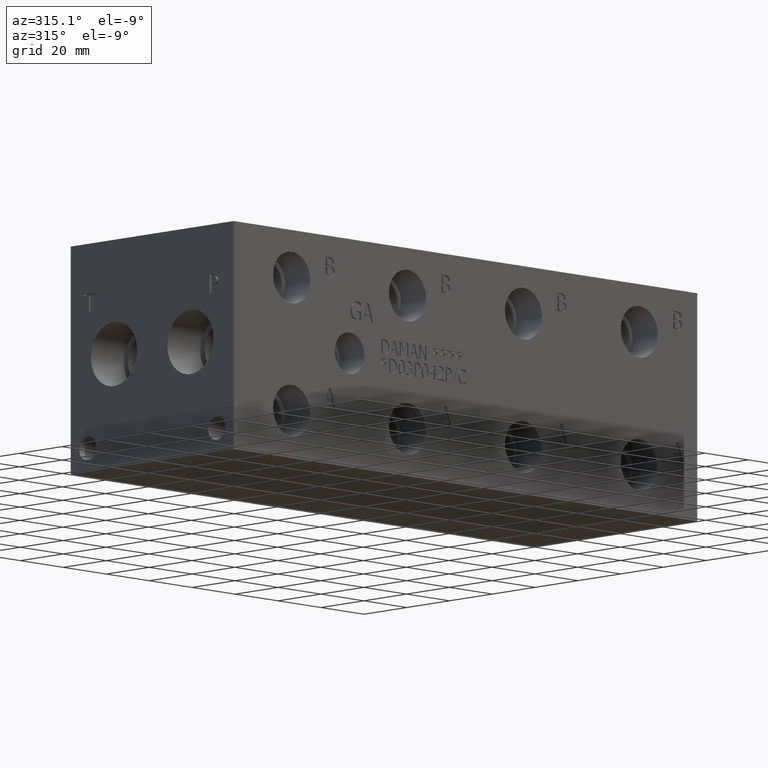
[diagram: clean part render]
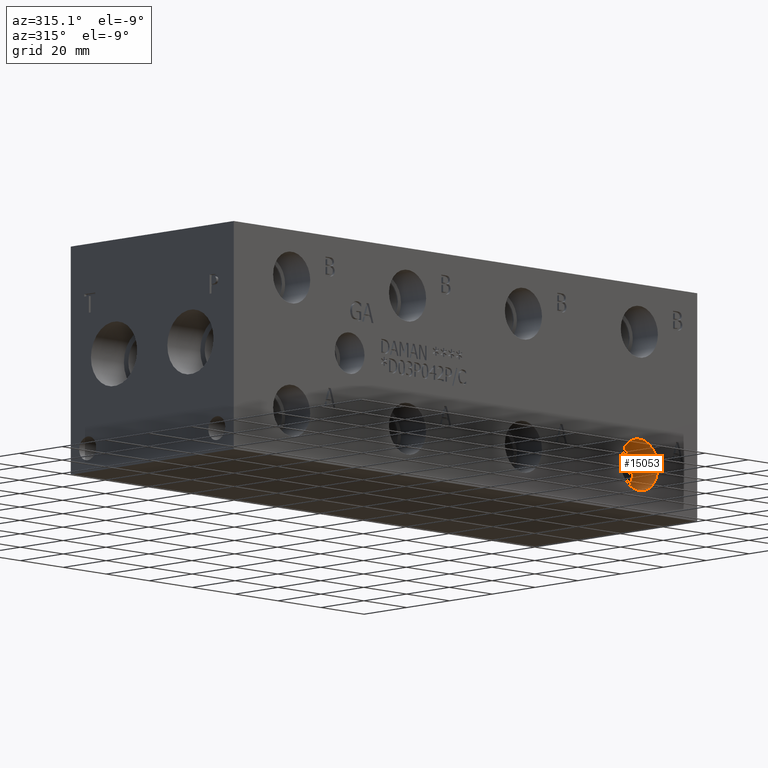
[diagram: same view with one face highlighted and labeled with its STEP entity id]
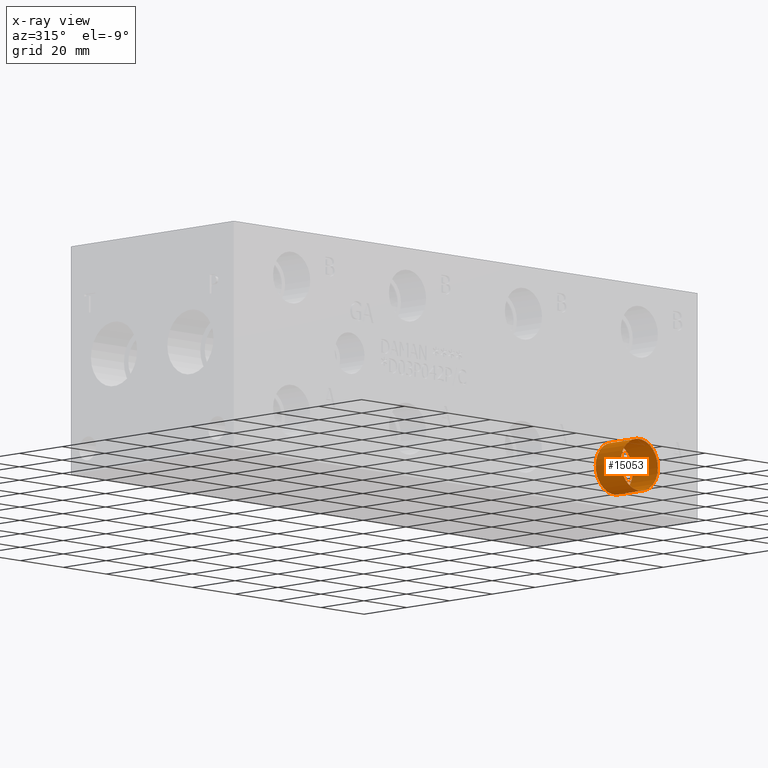
[diagram: x-ray of the same camera — body ghosted, the highlighted face saturated]
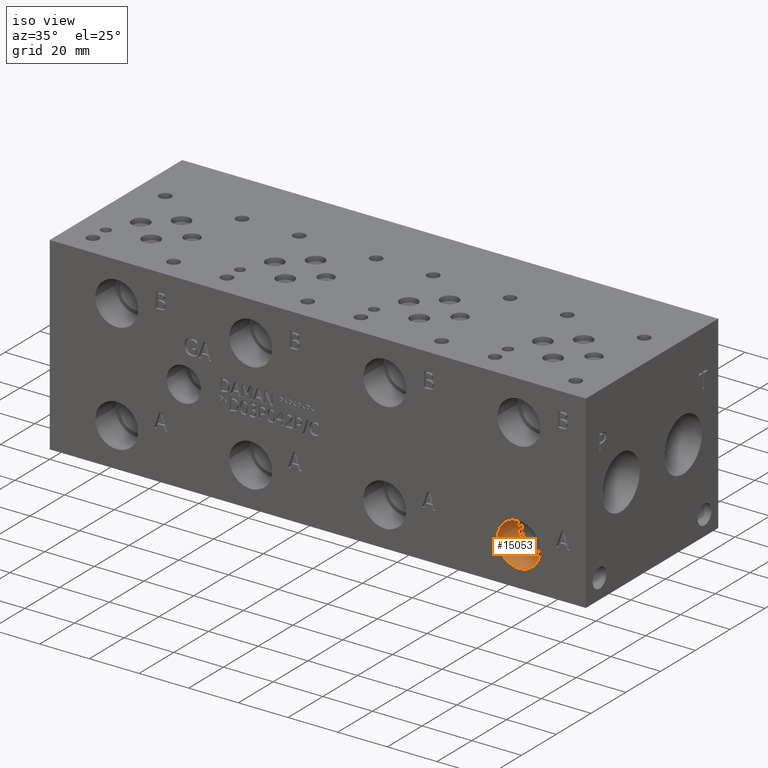
[diagram: same view with one face highlighted and labeled with its STEP entity id]
A machine part, auxiliary view. The second image highlights one B-rep face of the part: STEP entity #15053.
The next image is the same camera in x-ray: the body ghosted, the highlighted face saturated — about 0% of this face is hidden behind the body in this view.
A second angle (iso view) of the same face is appended — the face is thin or edge-on in the first view.
In plain terms, the highlighted cylindrical surface (bore or boss wall) has radius 8.6487 mm, axis along (0, -1, 0).
Its self-contained STEP definition (entity closure, byte-faithful):
#82=CYLINDRICAL_SURFACE('',#15928,8.6487);
#188=CIRCLE('',#15232,8.6487);
#189=CIRCLE('',#15233,8.6487);
#440=CIRCLE('',#15925,8.6487);
#441=CIRCLE('',#15926,8.6487);
#1949=FACE_OUTER_BOUND('',#2827,.T.);
#2827=EDGE_LOOP('',(#12974,#12975,#12976,#12977,#12978,#12979));
#4245=LINE('',#25790,#5602);
#5602=VECTOR('',#18981,8.6487);
#6074=VERTEX_POINT('',#21807);
#6075=VERTEX_POINT('',#21808);
#7012=VERTEX_POINT('',#25783);
#7013=VERTEX_POINT('',#25784);
#7697=EDGE_CURVE('',#6074,#6075,#188,.T.);
#7698=EDGE_CURVE('',#6075,#6074,#189,.T.);
#9056=EDGE_CURVE('',#7012,#7013,#440,.T.);
#9057=EDGE_CURVE('',#7013,#7012,#441,.T.);
#9059=EDGE_CURVE('',#6075,#7013,#4245,.T.);
#12974=ORIENTED_EDGE('',*,*,#7697,.F.);
#12975=ORIENTED_EDGE('',*,*,#7698,.F.);
#12976=ORIENTED_EDGE('',*,*,#9059,.T.);
#12977=ORIENTED_EDGE('',*,*,#9056,.F.);
#12978=ORIENTED_EDGE('',*,*,#9057,.F.);
#12979=ORIENTED_EDGE('',*,*,#9059,.F.);
#15053=ADVANCED_FACE('',(#1949),#82,.F.);
#15232=AXIS2_PLACEMENT_3D('',#21809,#16642,#16643);
#15233=AXIS2_PLACEMENT_3D('',#21810,#16644,#16645);
#15925=AXIS2_PLACEMENT_3D('',#25785,#18973,#18974);
#15926=AXIS2_PLACEMENT_3D('',#25786,#18975,#18976);
#15928=AXIS2_PLACEMENT_3D('',#25789,#18979,#18980);
#16642=DIRECTION('center_axis',(0.,1.,0.));
#16643=DIRECTION('ref_axis',(1.,0.,0.));
#16644=DIRECTION('center_axis',(0.,1.,0.));
#16645=DIRECTION('ref_axis',(1.,0.,0.));
#18973=DIRECTION('center_axis',(0.,-1.,0.));
#18974=DIRECTION('ref_axis',(1.,0.,0.));
#18975=DIRECTION('center_axis',(0.,-1.,0.));
#18976=DIRECTION('ref_axis',(1.,0.,0.));
#18979=DIRECTION('center_axis',(0.,-1.,0.));
#18980=DIRECTION('ref_axis',(1.,0.,0.));
#18981=DIRECTION('',(0.,1.,0.));
#21807=CARTESIAN_POINT('',(197.5485,0.,15.875));
#21808=CARTESIAN_POINT('',(180.2511,0.,15.875));
#21809=CARTESIAN_POINT('Origin',(188.8998,0.,15.875));
#21810=CARTESIAN_POINT('Origin',(188.8998,0.,15.875));
#25783=CARTESIAN_POINT('',(197.5485,11.7348,15.875));
#25784=CARTESIAN_POINT('',(180.2511,11.7348,15.875));
#25785=CARTESIAN_POINT('Origin',(188.8998,11.7348,15.875));
#25786=CARTESIAN_POINT('Origin',(188.8998,11.7348,15.875));
#25789=CARTESIAN_POINT('Origin',(188.8998,5.8674,15.875));
#25790=CARTESIAN_POINT('',(180.2511,5.8674,15.875));